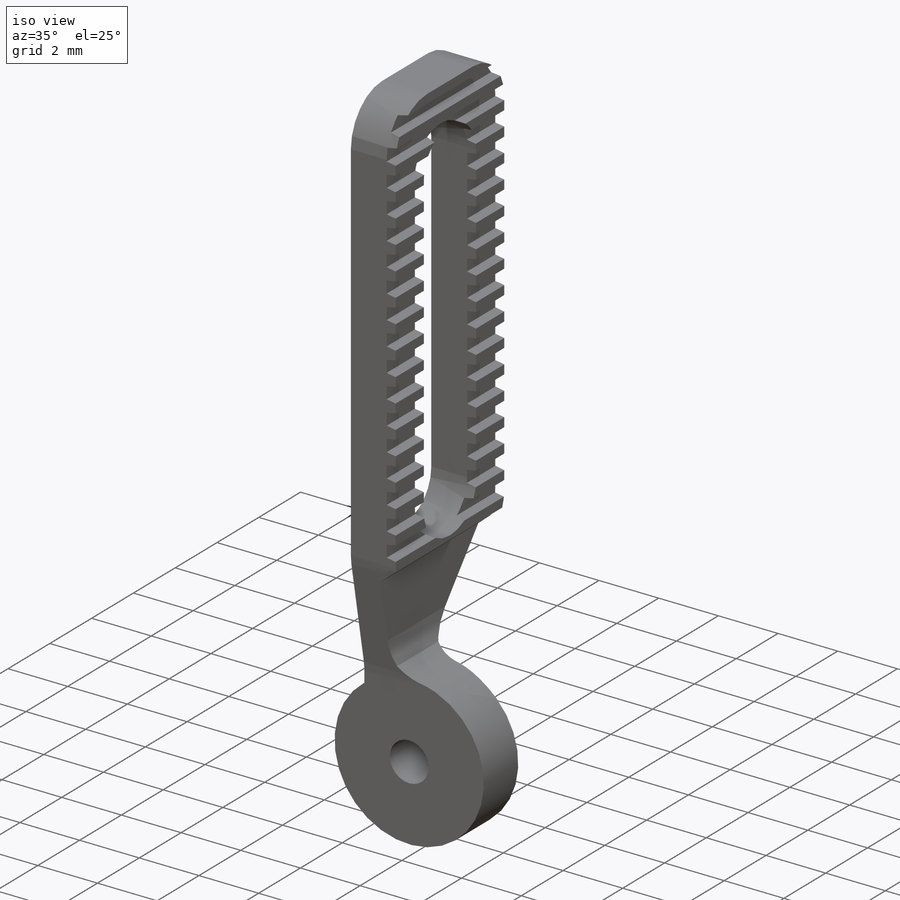
[diagram: iso view]
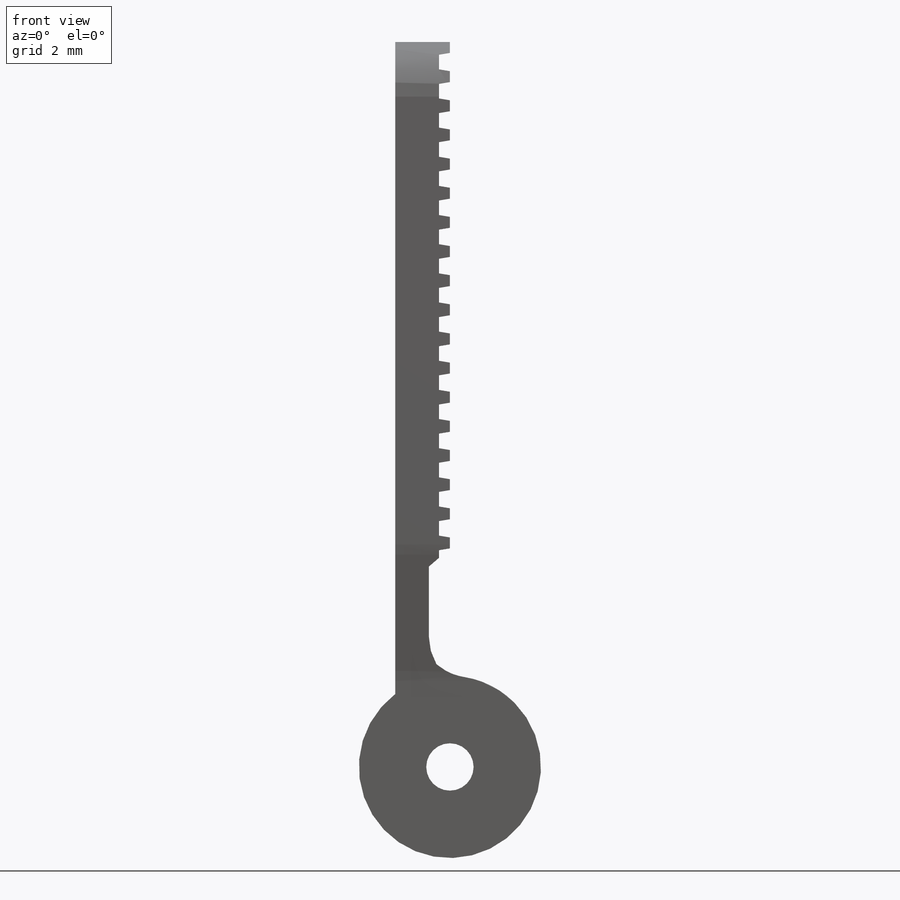
[diagram: front view]
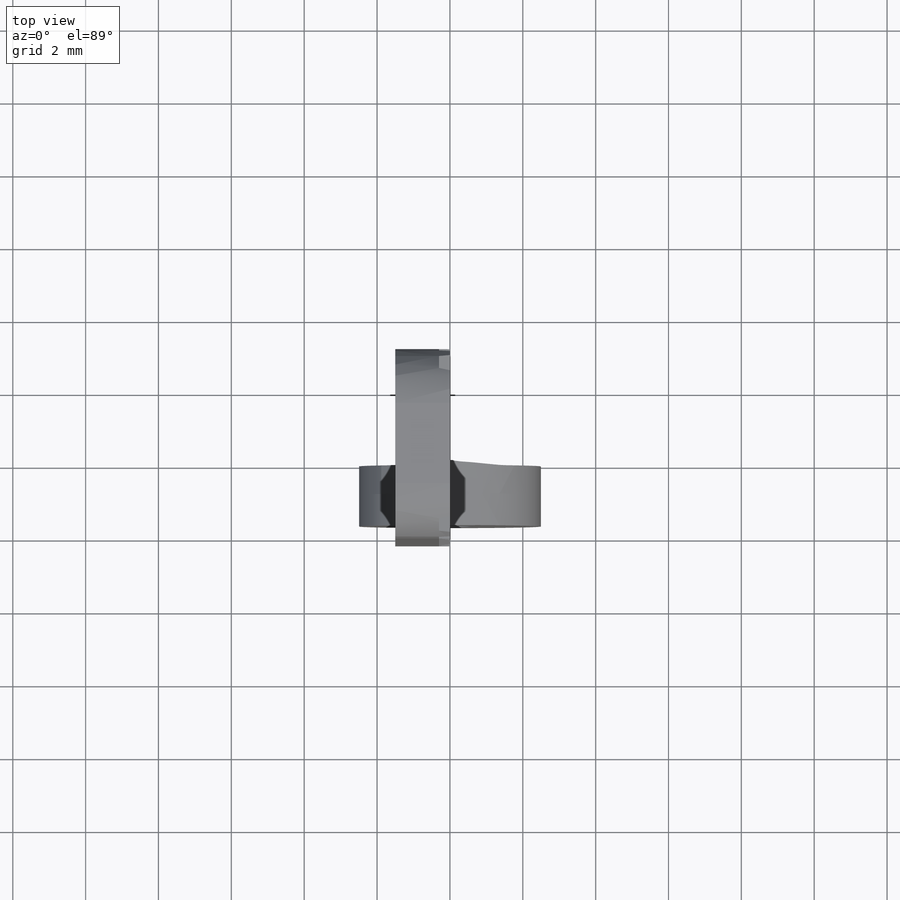
[diagram: top view]
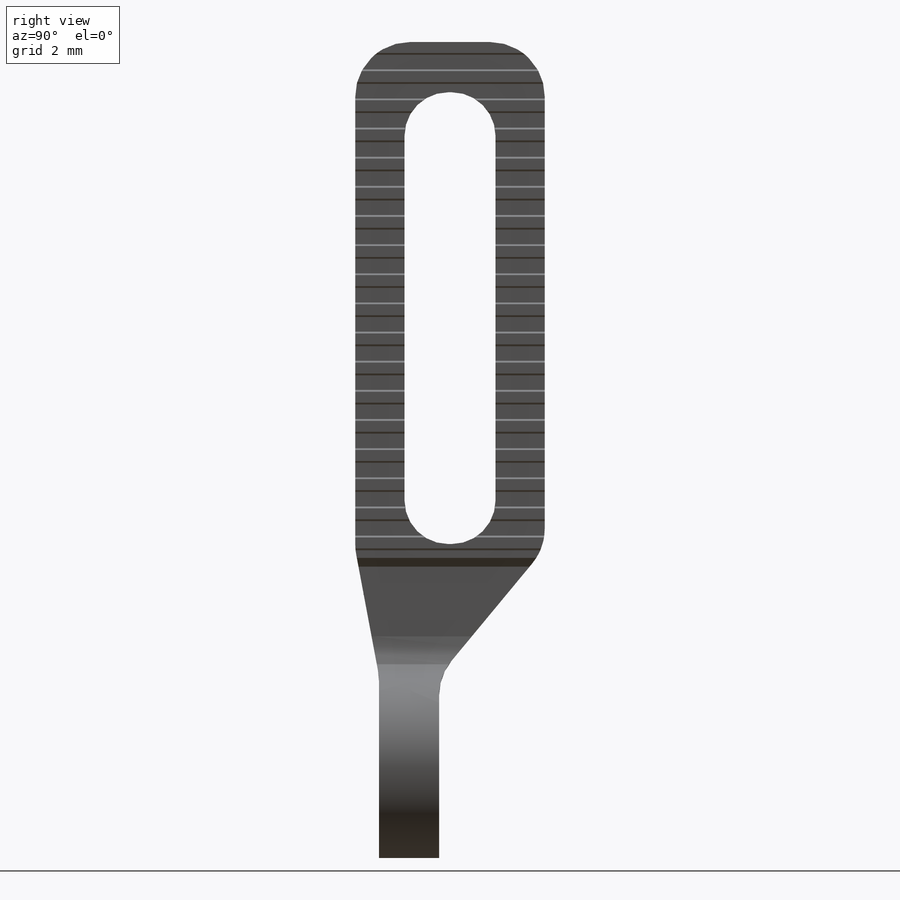
[diagram: right view]
SOLIDWORKS PART (.sldprt)
format: sldprt  version: not decoded by parser v0  size: 500,224 bytes
history: native  units: mm
features: sketch x9, cut_extrude x7, fillet x3, extrude x2, material x1 (+13 scaffold rows collapsed)
feature tree (35):
  scaffold x13  (default folders/planes/origin — collapsed)
  material  "Material <not specified>"
  sketch  "Sketch1"  dims[D1=5.0mm]
  extrude  "Extrude1"  Depth=1.65mm
  sketch  "Sketch2"  dims[D1=1.3mm]
  cut_extrude  "Extrude2"  [1 undecoded]
  sketch  "Sketch3"  dims[c1.D1=0.65mm c1.D2=5.2mm c1.D3=1.5mm c1.D4=1.5mm c1.D5=1.3mm c2.D4=0.65mm]
  extrude  "Extrude4"  Depth=19.9mm
  sketch  "Sketch4"  dims[D1=~4.506809mm D2=3.5mm]
  cut_extrude  "Extrude5"  [1 undecoded]
  fillet  "Fillet1"  Radius=1.5mm
  sketch  "Sketch5"  dims[D5=1.2mm D6=1.2mm D1=12.4mm D2=2.5mm D3=1.35mm D4=1.38mm]
  cut_extrude  "Extrude6"  [1 undecoded]
  sketch  "Sketch6"
  cut_extrude  "Extrude7"  [1 undecoded]
  sketch  "Sketch7"
  cut_extrude  "Extrude8"  [1 undecoded]
  sketch  "Sketch9"  dims[D1=0.5mm D2=0.3mm D3=0.05mm D4=0.05mm D5=0.3mm]
  cut_extrude  "Extrude10"  [1 undecoded]
  sketch  "Sketch11"  dims[D1=0.5mm D2=0.5mm D3=1.3mm]
  cut_extrude  "Extrude11"  [1 undecoded]
  fillet  "Fillet2"  Radius=1.5mm
  fillet  "Fillet3"  Radius=1.5mm
decode coverage: 12 of 21 modeling features carry decoded parameters
note: ~ marks probable driven/reference dimensions
note: 7 parameter values undecoded
summary: no parameter record found for 7 features
note: suppression state not decoded; provenance and decode notes live in map.json
